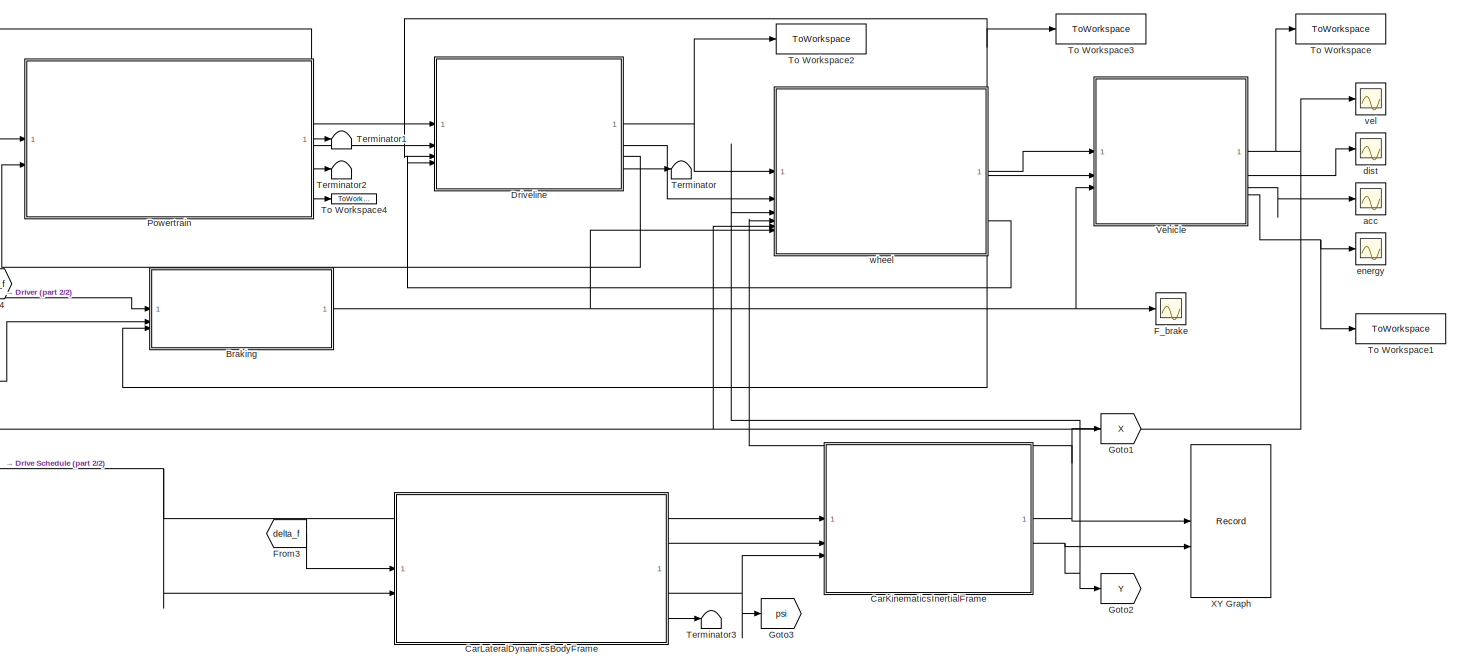
[diagram: root canvas - part 1/2, center side, full height]
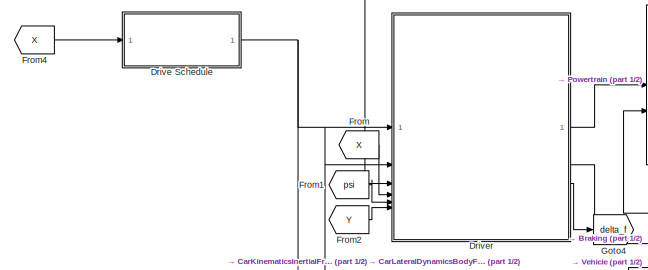
[diagram: root canvas - part 2/2, top left region]
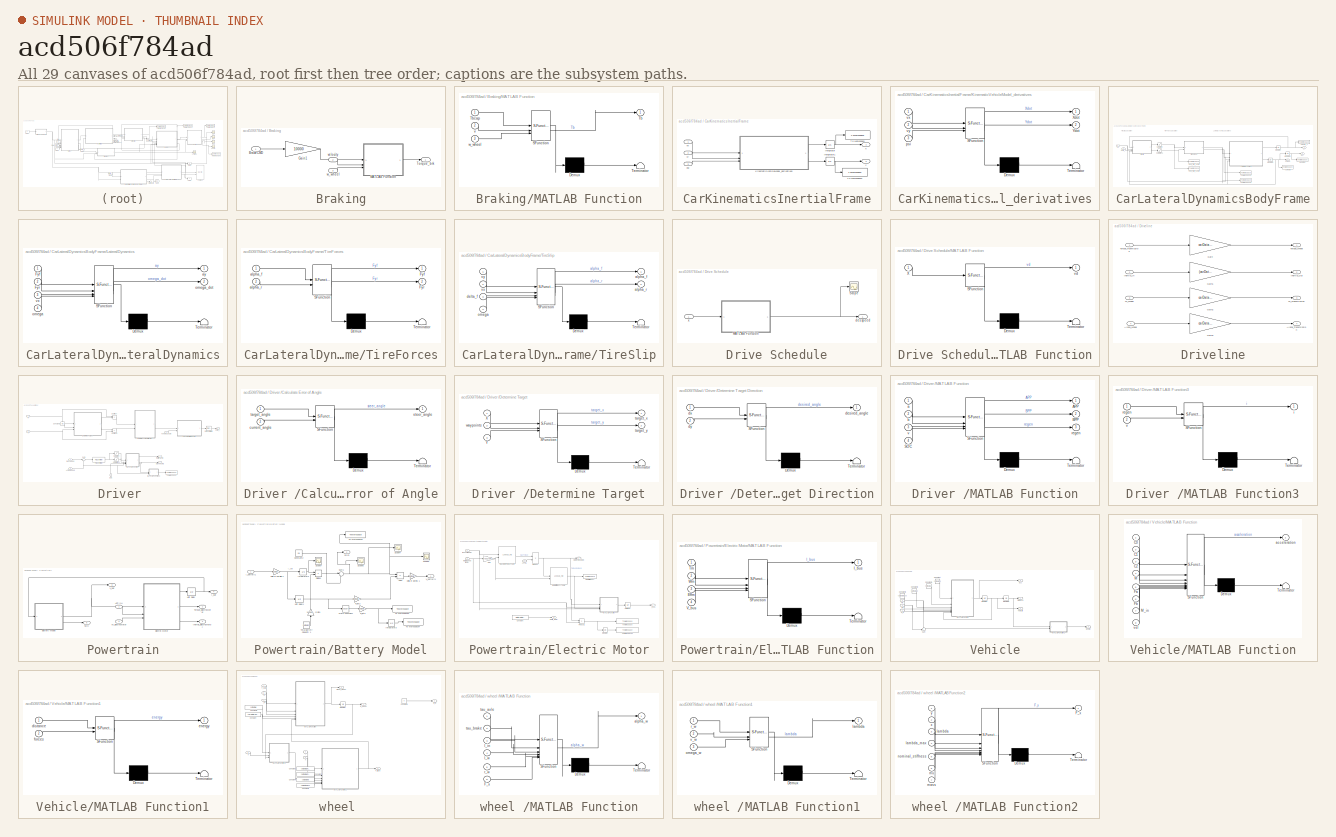
[diagram: thumbnail index - all 29 canvases of the model, root first then tree order]
MODEL slx_acd506f784ad
KIND model
CONFIG AbsTol = auto
CONFIG EnableMultiTasking = off
CONFIG FixedStep = 0.01
CONFIG MaxStep = auto
CONFIG MinStep = auto
CONFIG RelTol = 1e-3
CONFIG SampleTimeConstraint = Unconstrained
CONFIG SolverName = FixedStepAuto
CONFIG StartTime = 0.0
CONFIG StopTime = 240
BLOCK [SubSystem] Braking
BLOCK [Inport] Braking/BrakeCMD 
BLOCK [Gain] Braking/Gain1
  Gain = 10000
BLOCK [SubSystem] Braking/MATLAB Function
  ErrorFcn = Stateflow.Translate.translate
  PermitHierarchicalResolution = ExplicitOnly
  SFBlockType = MATLAB Function
  TreatAsAtomicUnit = on
BLOCK [Demux] Braking/MATLAB Function/ Demux 
  Outputs = 1
BLOCK [S-Function] Braking/MATLAB Function/ SFunction 
  EnableBusSupport = on
  FunctionName = sf_sfun
  PortCounts = [3 2]
  SFcnIsStateOwnerBlock = off
  SFunctionDeploymentMode = off
  Tag = Stateflow S-Function 7
BLOCK [Terminator] Braking/MATLAB Function/ Terminator 
BLOCK [Outport] Braking/MATLAB Function/Tb
BLOCK [Inport] Braking/MATLAB Function/Tbcap
BLOCK [Inport] Braking/MATLAB Function/v
  Port = 2
BLOCK [Inport] Braking/MATLAB Function/w_wheel
  Port = 3
BLOCK [Outport] Braking/Torque_brk 
  VectorParamsAs1DForOutWhenUnconnected = off
BLOCK [Inport] Braking/velocity 
  Port = 2
BLOCK [Inport] Braking/w_wheel
  Port = 3
BLOCK [SubSystem] CarKinematicsInertialFrame
BLOCK [Integrator] CarKinematicsInertialFrame/Integrator
  InitialCondition = carData.init.X0
BLOCK [Integrator] CarKinematicsInertialFrame/Integrator1
  InitialCondition = carData.init.Y0
BLOCK [SubSystem] CarKinematicsInertialFrame/KinematicVehicleModel_derivatives
  ErrorFcn = Stateflow.Translate.translate
  PermitHierarchicalResolution = ExplicitOnly
  SFBlockType = MATLAB Function
  TreatAsAtomicUnit = on
BLOCK [Demux] CarKinematicsInertialFrame/KinematicVehicleModel_derivatives/ Demux 
  Outputs = 1
BLOCK [S-Function] CarKinematicsInertialFrame/KinematicVehicleModel_derivatives/ SFunction 
  EnableBusSupport = on
  FunctionName = sf_sfun
  PortCounts = [3 3]
  SFcnIsStateOwnerBlock = off
  SFunctionDeploymentMode = off
  Tag = Stateflow S-Function 12
BLOCK [Terminator] CarKinematicsInertialFrame/KinematicVehicleModel_derivatives/ Terminator 
BLOCK [Outport] CarKinematicsInertialFrame/KinematicVehicleModel_derivatives/Xdot
BLOCK [Outport] CarKinematicsInertialFrame/KinematicVehicleModel_derivatives/Ydot
  Port = 2
BLOCK [Inport] CarKinematicsInertialFrame/KinematicVehicleModel_derivatives/psi
  Port = 3
BLOCK [Inport] CarKinematicsInertialFrame/KinematicVehicleModel_derivatives/vx
BLOCK [Inport] CarKinematicsInertialFrame/KinematicVehicleModel_derivatives/vy
  Port = 2
BLOCK [ToWorkspace] CarKinematicsInertialFrame/To Workspace
  FixptAsFi = on
  MaxDataPoints = inf
  SampleTime = -1
  SaveFormat = Timeseries
  VariableName = X
BLOCK [ToWorkspace] CarKinematicsInertialFrame/To Workspace1
  FixptAsFi = on
  MaxDataPoints = inf
  SampleTime = -1
  SaveFormat = Timeseries
  VariableName = Y
BLOCK [Outport] CarKinematicsInertialFrame/X
BLOCK [Outport] CarKinematicsInertialFrame/Y
  Port = 2
BLOCK [Inport] CarKinematicsInertialFrame/psi
  Port = 3
BLOCK [Inport] CarKinematicsInertialFrame/vx
BLOCK [Inport] CarKinematicsInertialFrame/vy
  Port = 2
BLOCK [SubSystem] CarLateralDynamicsBodyFrame
BLOCK [ToWorkspace] CarLateralDynamicsBodyFrame/Front_Slip_Angle
  FixptAsFi = on
  MaxDataPoints = inf
  SampleTime = -1
  SaveFormat = Timeseries
  VariableName = alpha_f
BLOCK [ToWorkspace] CarLateralDynamicsBodyFrame/Heading
  FixptAsFi = on
  MaxDataPoints = inf
  SampleTime = -1
  SaveFormat = Timeseries
  VariableName = psi
BLOCK [Integrator] CarLateralDynamicsBodyFrame/Integrator
  InitialCondition = carData.init.vy0
BLOCK [Integrator] CarLateralDynamicsBodyFrame/Integrator1
  InitialCondition = carData.init.omega0
BLOCK [Integrator] CarLateralDynamicsBodyFrame/Integrator2
  InitialCondition = carData.init.psi0
BLOCK [SubSystem] CarLateralDynamicsBodyFrame/LateralDynamics
  ErrorFcn = Stateflow.Translate.translate
  PermitHierarchicalResolution = ExplicitOnly
  SFBlockType = MATLAB Function
  TreatAsAtomicUnit = on
BLOCK [Demux] CarLateralDynamicsBodyFrame/LateralDynamics/ Demux 
  Outputs = 1
BLOCK [S-Function] CarLateralDynamicsBodyFrame/LateralDynamics/ SFunction 
  EnableBusSupport = on
  FunctionName = sf_sfun
  Parameters = obj
  PortCounts = [4 3]
  SFcnIsStateOwnerBlock = off
  SFunctionDeploymentMode = off
  Tag = Stateflow S-Function 9
BLOCK [Terminator] CarLateralDynamicsBodyFrame/LateralDynamics/ Terminator 
BLOCK [Inport] CarLateralDynamicsBodyFrame/LateralDynamics/Fyf
BLOCK [Inport] CarLateralDynamicsBodyFrame/LateralDynamics/Fyr
  Port = 2
BLOCK [Outport] CarLateralDynamicsBodyFrame/LateralDynamics/ay
BLOCK [Inport] CarLateralDynamicsBodyFrame/LateralDynamics/omega
  Port = 4
BLOCK [Outport] CarLateralDynamicsBodyFrame/LateralDynamics/omega_dot
  Port = 2
BLOCK [Inport] CarLateralDynamicsBodyFrame/LateralDynamics/vx
  Port = 3
BLOCK [ToWorkspace] CarLateralDynamicsBodyFrame/Rear_Slip_Angle
  FixptAsFi = on
  MaxDataPoints = inf
  SampleTime = -1
  SaveFormat = Timeseries
  VariableName = alpha_r
BLOCK [Saturate] CarLateralDynamicsBodyFrame/Saturation
  LowerLimit = -carData.maxAlpha
  UpperLimit = carData.maxAlpha
BLOCK [Saturate] CarLateralDynamicsBodyFrame/Saturation1
  LowerLimit = -carData.maxAlpha
  UpperLimit = carData.maxAlpha
BLOCK [SubSystem] CarLateralDynamicsBodyFrame/TireForces
  ErrorFcn = Stateflow.Translate.translate
  PermitHierarchicalResolution = ExplicitOnly
  SFBlockType = MATLAB Function
  TreatAsAtomicUnit = on
BLOCK [Demux] CarLateralDynamicsBodyFrame/TireForces/ Demux 
  Outputs = 1
BLOCK [S-Function] CarLateralDynamicsBodyFrame/TireForces/ SFunction 
  EnableBusSupport = on
  FunctionName = sf_sfun
  Parameters = obj
  PortCounts = [2 3]
  SFcnIsStateOwnerBlock = off
  SFunctionDeploymentMode = off
  Tag = Stateflow S-Function 10
BLOCK [Terminator] CarLateralDynamicsBodyFrame/TireForces/ Terminator 
BLOCK [Outport] CarLateralDynamicsBodyFrame/TireForces/Fyf
BLOCK [Outport] CarLateralDynamicsBodyFrame/TireForces/Fyr
  Port = 2
BLOCK [Inport] CarLateralDynamicsBodyFrame/TireForces/alpha_f
BLOCK [Inport] CarLateralDynamicsBodyFrame/TireForces/alpha_r
  Port = 2
BLOCK [SubSystem] CarLateralDynamicsBodyFrame/TireSlip
  ErrorFcn = Stateflow.Translate.translate
  PermitHierarchicalResolution = ExplicitOnly
  SFBlockType = MATLAB Function
  TreatAsAtomicUnit = on
BLOCK [Demux] CarLateralDynamicsBodyFrame/TireSlip/ Demux 
  Outputs = 1
BLOCK [S-Function] CarLateralDynamicsBodyFrame/TireSlip/ SFunction 
  EnableBusSupport = on
  FunctionName = sf_sfun
  Parameters = obj
  PortCounts = [4 3]
  SFcnIsStateOwnerBlock = off
  SFunctionDeploymentMode = off
  Tag = Stateflow S-Function 11
BLOCK [Terminator] CarLateralDynamicsBodyFrame/TireSlip/ Terminator 
BLOCK [Outport] CarLateralDynamicsBodyFrame/TireSlip/alpha_f
BLOCK [Outport] CarLateralDynamicsBodyFrame/TireSlip/alpha_r
  Port = 2
BLOCK [Inport] CarLateralDynamicsBodyFrame/TireSlip/delta_f
  Port = 3
BLOCK [Inport] CarLateralDynamicsBodyFrame/TireSlip/omega
  Port = 4
BLOCK [Inport] CarLateralDynamicsBodyFrame/TireSlip/vx
  Port = 2
BLOCK [Inport] CarLateralDynamicsBodyFrame/TireSlip/vy
BLOCK [ToWorkspace] CarLateralDynamicsBodyFrame/To Workspace5
  FixptAsFi = on
  MaxDataPoints = inf
  SampleTime = -1
  SaveFormat = Timeseries
  VariableName = Fyf
BLOCK [ToWorkspace] CarLateralDynamicsBodyFrame/To Workspace6
  FixptAsFi = on
  MaxDataPoints = inf
  SampleTime = -1
  SaveFormat = Timeseries
  VariableName = Fyr
BLOCK [ToWorkspace] CarLateralDynamicsBodyFrame/Velocity_Y
  FixptAsFi = on
  MaxDataPoints = inf
  SampleTime = -1
  SaveFormat = Timeseries
  VariableName = vy
BLOCK [ToWorkspace] CarLateralDynamicsBodyFrame/Yaw Rate
  FixptAsFi = on
  MaxDataPoints = inf
  SampleTime = -1
  SaveFormat = Timeseries
  VariableName = omega
BLOCK [Inport] CarLateralDynamicsBodyFrame/delta_f
BLOCK [Outport] CarLateralDynamicsBodyFrame/omega
  Port = 3
BLOCK [Outport] CarLateralDynamicsBodyFrame/psi
  Port = 2
BLOCK [Inport] CarLateralDynamicsBodyFrame/vx
  Port = 2
BLOCK [Outport] CarLateralDynamicsBodyFrame/vy
BLOCK [SubSystem] Drive Schedule
BLOCK [SubSystem] Drive Schedule/MATLAB Function
  ErrorFcn = Stateflow.Translate.translate
  PermitHierarchicalResolution = ExplicitOnly
  SFBlockType = MATLAB Function
  TreatAsAtomicUnit = on
BLOCK [Demux] Drive Schedule/MATLAB Function/ Demux 
  Outputs = 1
BLOCK [S-Function] Drive Schedule/MATLAB Function/ SFunction 
  EnableBusSupport = on
  FunctionName = sf_sfun
  PortCounts = [1 2]
  SFcnIsStateOwnerBlock = off
  SFunctionDeploymentMode = off
  Tag = Stateflow S-Function 15
BLOCK [Terminator] Drive Schedule/MATLAB Function/ Terminator 
BLOCK [Inport] Drive Schedule/MATLAB Function/X
BLOCK [Outport] Drive Schedule/MATLAB Function/vd
BLOCK [Scope] Drive Schedule/Scope
  Floating = off
  NumInputPorts = 1
  ScopeSpecificationString = Simulink.scopes.TimeScopeBlockCfg('CurrentConfiguration', extmgr.ConfigurationSet(extmgr.Configuration('Core','General UI',true),extmgr.Configuration('Core','Source UI',true),extmgr.Configuration('Sources','WiredSimulink',true,'DataLoggingVariableName','ScopeData4'),extmgr.Configuration('Visuals','Time Domain',true,'SerializedDisplays',{struct('MinYLimReal','-3.1684','MaxYLimReal','28.51556','YLab...<+1407ch>
BLOCK [Outport] Drive Schedule/des speed 
  VectorParamsAs1DForOutWhenUnconnected = off
BLOCK [Inport] Drive Schedule/x
BLOCK [SubSystem] Driveline
BLOCK [Outport] Driveline/Alpha_Transmission
  Port = 4
BLOCK [Inport] Driveline/Alpha_Wheel
  Port = 4
BLOCK [Gain] Driveline/Gain
  Gain = carData.FDG
BLOCK [Gain] Driveline/Gain1
  Gain = (carData.FDG)^2
BLOCK [Gain] Driveline/Gain2
  Gain = carData.FDG
BLOCK [Gain] Driveline/Gain3
  Gain = carData.FDG
BLOCK [Inport] Driveline/Inertia_In
  Port = 2
BLOCK [Outport] Driveline/Inertia_Out
  Port = 2
BLOCK [Inport] Driveline/Torque_Tranmission
BLOCK [Outport] Driveline/Torque_Wheel
BLOCK [Outport] Driveline/W_Transmission
  Port = 3
BLOCK [Inport] Driveline/W_Wheel
  Port = 3
BLOCK [SubSystem] Driver 
BLOCK [Inport] Driver /Actual Speed
  Port = 2
BLOCK [SubSystem] Driver /Calculate Error of Angle
  ErrorFcn = Stateflow.Translate.translate
  PermitHierarchicalResolution = ExplicitOnly
  SFBlockType = MATLAB Function
  TreatAsAtomicUnit = on
BLOCK [Demux] Driver /Calculate Error of Angle/ Demux 
  Outputs = 1
BLOCK [S-Function] Driver /Calculate Error of Angle/ SFunction 
  EnableBusSupport = on
  FunctionName = sf_sfun
  PortCounts = [2 2]
  SFcnIsStateOwnerBlock = off
  SFunctionDeploymentMode = off
  Tag = Stateflow S-Function 13
BLOCK [Terminator] Driver /Calculate Error of Angle/ Terminator 
BLOCK [Inport] Driver /Calculate Error of Angle/current_angle
  Port = 2
BLOCK [Outport] Driver /Calculate Error of Angle/steer_angle
BLOCK [Inport] Driver /Calculate Error of Angle/target_angle
BLOCK [Constant] Driver /Constant1
  Value = Wp
BLOCK [Inport] Driver /Des Speed 
BLOCK [SubSystem] Driver /Determine Target
  ErrorFcn = Stateflow.Translate.translate
  PermitHierarchicalResolution = ExplicitOnly
  SFBlockType = MATLAB Function
  TreatAsAtomicUnit = on
BLOCK [SubSystem] Driver /Determine Target Direction
  ErrorFcn = Stateflow.Translate.translate
  PermitHierarchicalResolution = ExplicitOnly
  SFBlockType = MATLAB Function
  TreatAsAtomicUnit = on
BLOCK [Demux] Driver /Determine Target Direction/ Demux 
  Outputs = 1
BLOCK [S-Function] Driver /Determine Target Direction/ SFunction 
  EnableBusSupport = on
  FunctionName = sf_sfun
  PortCounts = [2 2]
  SFcnIsStateOwnerBlock = off
  SFunctionDeploymentMode = off
  Tag = Stateflow S-Function 19
BLOCK [Terminator] Driver /Determine Target Direction/ Terminator 
BLOCK [Outport] Driver /Determine Target Direction/desired_angle
BLOCK [Inport] Driver /Determine Target Direction/dx
BLOCK [Inport] Driver /Determine Target Direction/dy
  Port = 2
BLOCK [Demux] Driver /Determine Target/ Demux 
  Outputs = 1
BLOCK [S-Function] Driver /Determine Target/ SFunction 
  EnableBusSupport = on
  FunctionName = sf_sfun
  PortCounts = [3 3]
  SFcnIsStateOwnerBlock = off
  SFunctionDeploymentMode = off
  Tag = Stateflow S-Function 14
BLOCK [Terminator] Driver /Determine Target/ Terminator 
BLOCK [Inport] Driver /Determine Target/X
BLOCK [Inport] Driver /Determine Target/Y
  Port = 3
BLOCK [Outport] Driver /Determine Target/target_x
BLOCK [Outport] Driver /Determine Target/target_y
  Port = 2
BLOCK [Inport] Driver /Determine Target/waypoints
  Port = 2
BLOCK [SubSystem] Driver /MATLAB Function
  ErrorFcn = Stateflow.Translate.translate
  PermitHierarchicalResolution = ExplicitOnly
  SFBlockType = MATLAB Function
  TreatAsAtomicUnit = on
BLOCK [Demux] Driver /MATLAB Function/ Demux 
  Outputs = 1
BLOCK [S-Function] Driver /MATLAB Function/ SFunction 
  EnableBusSupport = on
  FunctionName = sf_sfun
  PortCounts = [4 4]
  SFcnIsStateOwnerBlock = off
  SFunctionDeploymentMode = off
  Tag = Stateflow S-Function 1
BLOCK [Terminator] Driver /MATLAB Function/ Terminator 
BLOCK [Outport] Driver /MATLAB Function/APP
BLOCK [Outport] Driver /MATLAB Function/BPP
  Port = 2
BLOCK [Inport] Driver /MATLAB Function/SOC
  Port = 4
BLOCK [Inport] Driver /MATLAB Function/a
BLOCK [Inport] Driver /MATLAB Function/b
  Port = 2
BLOCK [Outport] Driver /MATLAB Function/regen
  Port = 3
BLOCK [Inport] Driver /MATLAB Function/v
  Port = 3
BLOCK [SubSystem] Driver /MATLAB Function3
  ErrorFcn = Stateflow.Translate.translate
  PermitHierarchicalResolution = ExplicitOnly
  SFBlockType = MATLAB Function
  TreatAsAtomicUnit = on
BLOCK [Demux] Driver /MATLAB Function3/ Demux 
  Outputs = 1
BLOCK [S-Function] Driver /MATLAB Function3/ SFunction 
  EnableBusSupport = on
  FunctionName = sf_sfun
  PortCounts = [2 2]
  SFcnIsStateOwnerBlock = off
  SFunctionDeploymentMode = off
  Tag = Stateflow S-Function 16
BLOCK [Terminator] Driver /MATLAB Function3/ Terminator 
BLOCK [Outport] Driver /MATLAB Function3/i
BLOCK [Inport] Driver /MATLAB Function3/regen
BLOCK [Inport] Driver /MATLAB Function3/v
  Port = 2
BLOCK [Reference] Driver /PID Controller  REF=slpidlib/PID Controller
  SourceBlock = slpidlib/PID Controller
  SourceType = PID 1dof
BLOCK [Reference] Driver /PID Controller2  REF=slpidlib/PID Controller
  LibrarySourceBlock = simulink/Continuous/PID Controller
  SourceBlock = slpidlib/PID Controller
  SourceType = PID 1dof
BLOCK [Inport] Driver /SOC
  NameLocation = right
  Port = 3
BLOCK [Saturate] Driver /Saturation
  LowerLimit = 0
  UpperLimit = 1
BLOCK [Saturate] Driver /Saturation1
  LowerLimit = -1
  UpperLimit = 0
BLOCK [Sum] Driver /Subtract
  IconShape = rectangular
  Inputs = -+
BLOCK [Sum] Driver /Subtract1
  IconShape = rectangular
  Inputs = +-
BLOCK [Sum] Driver /Sum
  Inputs = |+-
BLOCK [ToWorkspace] Driver /To Workspace
  FixptAsFi = on
  MaxDataPoints = inf
  SampleTime = -1
  SaveFormat = Timeseries
  VariableName = brake
BLOCK [Inport] Driver /X
  Port = 4
BLOCK [Inport] Driver /Y
  Port = 6
BLOCK [Outport] Driver /brake%cmd 
  Port = 2
BLOCK [Outport] Driver /delta_f
  Port = 3
BLOCK [Outport] Driver /throttle%cmd
BLOCK [Inport] Driver /vehicle_angle
  Port = 5
BLOCK [Scope] F_brake
  Floating = off
  NumInputPorts = 1
  ScopeSpecificationString = Simulink.scopes.TimeScopeBlockCfg('CurrentConfiguration', extmgr.ConfigurationSet(extmgr.Configuration('Core','General UI',true),extmgr.Configuration('Core','Source UI',true),extmgr.Configuration('Sources','WiredSimulink',true,'DataLoggingVariableName','ScopeData4'),extmgr.Configuration('Visuals','Time Domain',true,'SerializedDisplays',{struct('MinYLimReal','-183.82517','MaxYLimReal','1654.4265','...<+1469ch>
BLOCK [From] From
  GotoTag = X
BLOCK [From] From1
  GotoTag = psi
BLOCK [From] From2
  GotoTag = Y
BLOCK [From] From3
  GotoTag = delta_f
BLOCK [From] From4
  GotoTag = X
BLOCK [Goto] Goto1
  GotoTag = X
BLOCK [Goto] Goto2
  GotoTag = Y
BLOCK [Goto] Goto3
  GotoTag = psi
BLOCK [Goto] Goto4
  GotoTag = delta_f
BLOCK [SubSystem] Powertrain
BLOCK [Inport] Powertrain/APP (%)
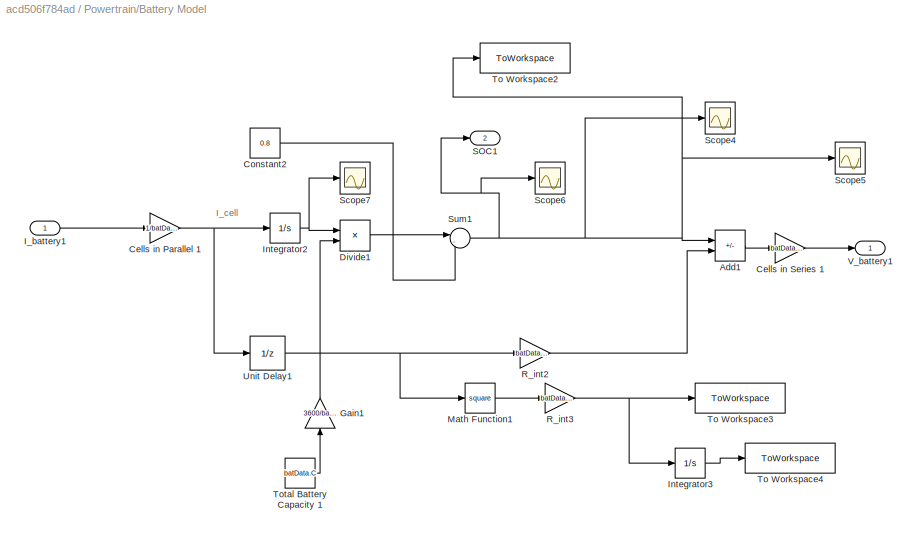
BLOCK [SubSystem] Powertrain/Battery Model
  TreatAsAtomicUnit = on
BLOCK [Sum] Powertrain/Battery Model/Add1
  IconShape = rectangular
  Inputs = +-
BLOCK [Gain] Powertrain/Battery Model/Cells in Parallel 1
  Gain = 1/batData.numParallel
BLOCK [Gain] Powertrain/Battery Model/Cells in Series 1
  Gain = batData.numSeries
BLOCK [Constant] Powertrain/Battery Model/Constant2
  Value = 0.8
BLOCK [Product] Powertrain/Battery Model/Divide1
  Inputs = */
BLOCK [Gain] Powertrain/Battery Model/Gain1
  Gain = 3600/batData.numParallel
  NameLocation = right
BLOCK [Inport] Powertrain/Battery Model/I_battery1
BLOCK [Integrator] Powertrain/Battery Model/Integrator2
BLOCK [Integrator] Powertrain/Battery Model/Integrator3
BLOCK [Math] Powertrain/Battery Model/Math Function1
  Operator = square
BLOCK [Gain] Powertrain/Battery Model/R_int2
  Gain = batData.Rint
BLOCK [Gain] Powertrain/Battery Model/R_int3
  Gain = batData.Rint
BLOCK [Outport] Powertrain/Battery Model/SOC1
  Port = 2
BLOCK [Scope] Powertrain/Battery Model/Scope4
  Floating = off
  NumInputPorts = 1
  ScopeSpecificationString = Simulink.scopes.TimeScopeBlockCfg('CurrentConfiguration', extmgr.ConfigurationSet(extmgr.Configuration('Core','General UI',true),extmgr.Configuration('Core','Source UI',true),extmgr.Configuration('Sources','WiredSimulink',true,'DataLoggingVariableName','ScopeData1'),extmgr.Configuration('Visuals','Time Domain',true,'SerializedDisplays',{struct('MinYLimReal','0.72781','MaxYLimReal','0.80802','YLabe...<+1483ch>
BLOCK [Scope] Powertrain/Battery Model/Scope5
  Floating = off
  NumInputPorts = 1
  ScopeSpecificationString = Simulink.scopes.TimeScopeBlockCfg('CurrentConfiguration', extmgr.ConfigurationSet(extmgr.Configuration('Core','General UI',true),extmgr.Configuration('Core','Source UI',true),extmgr.Configuration('Sources','WiredSimulink',true,'DataLoggingVariableName','ScopeData2'),extmgr.Configuration('Visuals','Time Domain',true,'SerializedDisplays',{struct('MinYLimReal','0.72781','MaxYLimReal','0.80802','YLabe...<+1486ch>
BLOCK [Scope] Powertrain/Battery Model/Scope6
  Floating = off
  NumInputPorts = 1
  ScopeSpecificationString = Simulink.scopes.TimeScopeBlockCfg('CurrentConfiguration', extmgr.ConfigurationSet(extmgr.Configuration('Core','General UI',true),extmgr.Configuration('Core','Source UI',true),extmgr.Configuration('Sources','WiredSimulink',true,'DataLoggingVariableName','ScopeData3'),extmgr.Configuration('Visuals','Time Domain',true,'SerializedDisplays',{struct('MinYLimReal','0.72781','MaxYLimReal','0.80802','YLabe...<+1450ch>
BLOCK [Scope] Powertrain/Battery Model/Scope7
  Floating = off
  NumInputPorts = 1
  ScopeSpecificationString = Simulink.scopes.TimeScopeBlockCfg('CurrentConfiguration', extmgr.ConfigurationSet(extmgr.Configuration('Core','General UI',true),extmgr.Configuration('Core','Source UI',true),extmgr.Configuration('Sources','WiredSimulink',true,'DataLoggingVariableName','ScopeData4'),extmgr.Configuration('Visuals','Time Domain',true,'SerializedDisplays',{struct('MinYLimReal','-1.00000','MaxYLimReal','1.00000','YLab...<+1370ch>
BLOCK [Sum] Powertrain/Battery Model/Sum1
  Inputs = |-+
  NameLocation = top
BLOCK [ToWorkspace] Powertrain/Battery Model/To Workspace2
  FixptAsFi = on
  MaxDataPoints = inf
  SampleTime = -1
  SaveFormat = Timeseries
  VariableName = OCV
BLOCK [ToWorkspace] Powertrain/Battery Model/To Workspace3
  FixptAsFi = on
  MaxDataPoints = inf
  SampleTime = -1
  SaveFormat = Timeseries
  VariableName = BatteryPowerLosses
BLOCK [ToWorkspace] Powertrain/Battery Model/To Workspace4
  FixptAsFi = on
  MaxDataPoints = inf
  SampleTime = -1
  SaveFormat = Timeseries
  VariableName = BatteryEnergyLosses
BLOCK [Constant] Powertrain/Battery Model/Total Battery Capacity 1
  Value = batData.C
BLOCK [UnitDelay] Powertrain/Battery Model/Unit Delay1
  HasFrameUpgradeWarning = on
  SampleTime = -1
BLOCK [Outport] Powertrain/Battery Model/V_battery1
BLOCK [SubSystem] Powertrain/Electric Motor
  TreatAsAtomicUnit = on
BLOCK [Inport] Powertrain/Electric Motor/APP (%)
  Port = 2
BLOCK [Inport] Powertrain/Electric Motor/Bus Voltage (V)
BLOCK [Constant] Powertrain/Electric Motor/Constant
  Value = motorData.Inertia
BLOCK [Gain] Powertrain/Electric Motor/Gain
  Gain = rps2rpm
BLOCK [Outport] Powertrain/Electric Motor/I_bus
BLOCK [Outport] Powertrain/Electric Motor/Inertia_Motor
  Port = 3
BLOCK [Integrator] Powertrain/Electric Motor/Integrator
BLOCK [SubSystem] Powertrain/Electric Motor/MATLAB Function
  ErrorFcn = Stateflow.Translate.translate
  PermitHierarchicalResolution = ExplicitOnly
  SFBlockType = MATLAB Function
  TreatAsAtomicUnit = on
BLOCK [Demux] Powertrain/Electric Motor/MATLAB Function/ Demux 
  Outputs = 1
BLOCK [S-Function] Powertrain/Electric Motor/MATLAB Function/ SFunction 
  EnableBusSupport = on
  FunctionName = sf_sfun
  PortCounts = [4 2]
  SFcnIsStateOwnerBlock = off
  SFunctionDeploymentMode = off
  Tag = Stateflow S-Function 4
BLOCK [Terminator] Powertrain/Electric Motor/MATLAB Function/ Terminator 
BLOCK [Inport] Powertrain/Electric Motor/MATLAB Function/Effm
  Port = 3
BLOCK [Outport] Powertrain/Electric Motor/MATLAB Function/I_bus
BLOCK [Inport] Powertrain/Electric Motor/MATLAB Function/Tm
BLOCK [Inport] Powertrain/Electric Motor/MATLAB Function/V_bus
  Port = 4
BLOCK [Inport] Powertrain/Electric Motor/MATLAB Function/Wm
  Port = 2
BLOCK [Lookup_n-D] Powertrain/Electric Motor/Max Motor Torque Table
  BreakpointsForDimension1 = motorData.vbus
  BreakpointsForDimension2 = motorData.rpm
  BreakpointsForDimension3 = [5, 7]
  InputPortMap = u0,u1
  InternalRulePriority = Speed
  RndMeth = Simplest
  Table = motorData.maxtorque
BLOCK [ToWorkspace] Powertrain/Electric Motor/Motor Efficiency
  FixptAsFi = on
  MaxDataPoints = inf
  SampleTime = -1
  SaveFormat = Timeseries
  VariableName = efficiency_motor1
BLOCK [Lookup_n-D] Powertrain/Electric Motor/Motor Efficiency Table
  BreakpointsForDimension1 = motorData.eta_torque
  BreakpointsForDimension2 = motorData.eta_speed
  BreakpointsForDimension3 = [5, 7]
  InputPortMap = u0,u1
  InternalRulePriority = Speed
  RndMeth = Simplest
  Table = motorData.eta_val
BLOCK [Inport] Powertrain/Electric Motor/Motor Speed (rad//s)
  Port = 3
BLOCK [Outport] Powertrain/Electric Motor/Motor Torque (Nm)
  Port = 2
BLOCK [Product] Powertrain/Electric Motor/Product
BLOCK [Product] Powertrain/Electric Motor/Product1
BLOCK [ToWorkspace] Powertrain/Electric Motor/To Workspace
  FixptAsFi = on
  MaxDataPoints = inf
  SampleTime = -1
  SaveFormat = Timeseries
  VariableName = MotorPower
BLOCK [ToWorkspace] Powertrain/Electric Motor/To Workspace1
  FixptAsFi = on
  MaxDataPoints = inf
  SampleTime = -1
  SaveFormat = Timeseries
  VariableName = MotorEnergy
BLOCK [UnitDelay] Powertrain/Electric Motor/Unit Delay
  HasFrameUpgradeWarning = on
  SampleTime = -1
BLOCK [Outport] Powertrain/I_bat
  Port = 4
BLOCK [Outport] Powertrain/Inertia_ElectricMotor
  Port = 2
BLOCK [Outport] Powertrain/SOC
  Port = 5
BLOCK [Outport] Powertrain/Torque_ElectricMotor
  NameLocation = top
BLOCK [UnitDelay] Powertrain/Unit Delay
  HasFrameUpgradeWarning = on
  SampleTime = -1
BLOCK [Outport] Powertrain/V_bat
  Port = 3
BLOCK [Inport] Powertrain/W_ElectricMotor
  Port = 2
BLOCK [Terminator] Terminator
BLOCK [Terminator] Terminator1
BLOCK [Terminator] Terminator2
BLOCK [Terminator] Terminator3
BLOCK [ToWorkspace] To Workspace
  FixptAsFi = on
  MaxDataPoints = inf
  SampleTime = -1
  SaveFormat = Timeseries
  VariableName = vel
BLOCK [ToWorkspace] To Workspace1
  FixptAsFi = on
  MaxDataPoints = inf
  SampleTime = -1
  SaveFormat = Timeseries
  VariableName = energy
BLOCK [ToWorkspace] To Workspace2
  FixptAsFi = on
  MaxDataPoints = inf
  SampleTime = -1
  SaveFormat = Timeseries
  VariableName = torque
BLOCK [ToWorkspace] To Workspace3
  FixptAsFi = on
  MaxDataPoints = inf
  SampleTime = -1
  SaveFormat = Timeseries
  VariableName = AngVel
BLOCK [ToWorkspace] To Workspace4
  FixptAsFi = on
  MaxDataPoints = inf
  SampleTime = -1
  SaveFormat = Timeseries
  VariableName = SOC
BLOCK [SubSystem] Vehicle
BLOCK [Constant] Vehicle/Constant
  Value = carData.C0
BLOCK [Constant] Vehicle/Constant1
  Value = carData.C1
BLOCK [Constant] Vehicle/Constant2
  Value = carData.C2
BLOCK [Constant] Vehicle/Constant3
  Value = carData.Mass
BLOCK [Outport] Vehicle/Distance 
  Port = 2
  VectorParamsAs1DForOutWhenUnconnected = off
BLOCK [Outport] Vehicle/Energy
  Port = 4
  VectorParamsAs1DForOutWhenUnconnected = off
BLOCK [Inport] Vehicle/Fb 
  Port = 3
BLOCK [Inport] Vehicle/Fw 
BLOCK [Integrator] Vehicle/Integrator
  LimitOutput = on
  LowerSaturationLimit = 0
BLOCK [Integrator] Vehicle/Integrator1
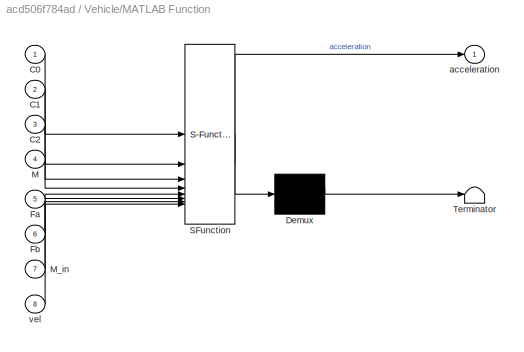
BLOCK [SubSystem] Vehicle/MATLAB Function
  ErrorFcn = Stateflow.Translate.translate
  PermitHierarchicalResolution = ExplicitOnly
  SFBlockType = MATLAB Function
  TreatAsAtomicUnit = on
BLOCK [Demux] Vehicle/MATLAB Function/ Demux 
  Outputs = 1
BLOCK [S-Function] Vehicle/MATLAB Function/ SFunction 
  EnableBusSupport = on
  FunctionName = sf_sfun
  PortCounts = [8 2]
  SFcnIsStateOwnerBlock = off
  SFunctionDeploymentMode = off
  Tag = Stateflow S-Function 2
BLOCK [Terminator] Vehicle/MATLAB Function/ Terminator 
BLOCK [Inport] Vehicle/MATLAB Function/C0
BLOCK [Inport] Vehicle/MATLAB Function/C1
  Port = 2
BLOCK [Inport] Vehicle/MATLAB Function/C2
  Port = 3
BLOCK [Inport] Vehicle/MATLAB Function/Fa
  Port = 5
BLOCK [Inport] Vehicle/MATLAB Function/Fb
  Port = 6
BLOCK [Inport] Vehicle/MATLAB Function/M
  Port = 4
BLOCK [Inport] Vehicle/MATLAB Function/M_in
  Port = 7
BLOCK [Outport] Vehicle/MATLAB Function/acceleration
  VectorParamsAs1DForOutWhenUnconnected = off
BLOCK [Inport] Vehicle/MATLAB Function/vel
  Port = 8
BLOCK [SubSystem] Vehicle/MATLAB Function1
  ErrorFcn = Stateflow.Translate.translate
  PermitHierarchicalResolution = ExplicitOnly
  SFBlockType = MATLAB Function
  TreatAsAtomicUnit = on
BLOCK [Demux] Vehicle/MATLAB Function1/ Demux 
  Outputs = 1
BLOCK [S-Function] Vehicle/MATLAB Function1/ SFunction 
  EnableBusSupport = on
  FunctionName = sf_sfun
  PortCounts = [2 2]
  SFcnIsStateOwnerBlock = off
  SFunctionDeploymentMode = off
  Tag = Stateflow S-Function 3
BLOCK [Terminator] Vehicle/MATLAB Function1/ Terminator 
BLOCK [Inport] Vehicle/MATLAB Function1/distance
BLOCK [Outport] Vehicle/MATLAB Function1/energy
BLOCK [Inport] Vehicle/MATLAB Function1/forces
  Port = 2
BLOCK [Inport] Vehicle/M_in 
  Port = 2
BLOCK [Sum] Vehicle/Sum
  Inputs = ++|
BLOCK [Outport] Vehicle/acc
  Port = 3
BLOCK [Outport] Vehicle/velocity 
  VectorParamsAs1DForOutWhenUnconnected = off
BLOCK [Record] XY Graph
  CompatibilityTag = XY
  FileSettingsInternal = {"entries":[{"content":{"excelSettings":{"content":{},"type":"Streamout.ExcelSettings"}},"type":"Streamout.FileSettingStorage","uuid":""}],"packageUris":["http:\/\/schema.mathworks.com\/mf0\/streamout_blocks\/R2020a"],"version":"1.0"}
  Layout = [1 1]
  SignalsInternal = {"entries":[{"content":{"signals":[{"content":{"blockPath":[],"dimensions":[1],"domain":"","lineColor":"#a2142f","plots":[ 1 ],"port":1,"sid":[""],"signalID":1,"signalName":"CarKinematicsInertialFrame:1"},"type":"RecordBlkView.Signal","uuid":""},{"content":{"blockPath":[],"dimensions":[1],"domain":"","lineColor":"#139fff","plots":[ 1 ],"port":2,"sid":[""],"signalID":2,"signalName":"CarKinematicsIn...<+202ch>
  VisualizationBindings = {"xyplotplugin":{"info":[{"series":[{"bindingParametersList":[{"parameter":"X-Axis","signalID":1,"signalName":"CarKinematicsInertialFrame:1"},{"parameter":"Y-Axis","signalID":2,"signalName":"CarKinematicsInertialFrame:2"}],"seriesID":0}],"subplotID":1}]}}
  st = -1
BLOCK [Scope] acc
  Floating = off
  NumInputPorts = 1
  ScopeSpecificationString = Simulink.scopes.TimeScopeBlockCfg('CurrentConfiguration', extmgr.ConfigurationSet(extmgr.Configuration('Core','General UI',true),extmgr.Configuration('Core','Source UI',true),extmgr.Configuration('Sources','WiredSimulink',true,'DataLoggingVariableName','ScopeData3'),extmgr.Configuration('Visuals','Time Domain',true,'SerializedDisplays',{struct('MinYLimReal','-12.30056','MaxYLimReal','74.14815','YL...<+1385ch>
BLOCK [Scope] dist
  Floating = off
  NumInputPorts = 1
  ScopeSpecificationString = Simulink.scopes.TimeScopeBlockCfg('CurrentConfiguration', extmgr.ConfigurationSet(extmgr.Configuration('Core','General UI',true),extmgr.Configuration('Core','Source UI',true),extmgr.Configuration('Sources','WiredSimulink',true,'DataLoggingVariableName','ScopeData2'),extmgr.Configuration('Visuals','Time Domain',true,'SerializedDisplays',{struct('MinYLimReal','-385.08236','MaxYLimReal','3465.74126',...<+1386ch>
BLOCK [Scope] energy
  Floating = off
  NumInputPorts = 1
  ScopeSpecificationString = Simulink.scopes.TimeScopeBlockCfg('CurrentConfiguration', extmgr.ConfigurationSet(extmgr.Configuration('Core','General UI',true),extmgr.Configuration('Core','Source UI',true),extmgr.Configuration('Sources','WiredSimulink',true,'DataLoggingVariableName','ScopeData1'),extmgr.Configuration('Visuals','Time Domain',true,'SerializedDisplays',{struct('MinYLimReal','-2146116.50369','MaxYLimReal','19315048...<+1587ch>
BLOCK [Scope] vel
  Floating = off
  NumInputPorts = 1
  ScopeSpecificationString = Simulink.scopes.TimeScopeBlockCfg('CurrentConfiguration', extmgr.ConfigurationSet(extmgr.Configuration('Core','General UI',true),extmgr.Configuration('Core','Source UI',true),extmgr.Configuration('Sources','WiredSimulink',true,'DataLoggingVariableName','ScopeData1'),extmgr.Configuration('Visuals','Time Domain',true,'SerializedDisplays',{struct('MinYLimReal','-3.04417','MaxYLimReal','27.39754','YLa...<+1407ch>
BLOCK [SubSystem] wheel 
BLOCK [Constant] wheel /Constant
  Value = carData.radius
BLOCK [Constant] wheel /Constant1
  Value = 0
BLOCK [Constant] wheel /Constant2
  Value = carData.lambda_max
BLOCK [Constant] wheel /Constant3
  Value = carData.lambda
BLOCK [Constant] wheel /Constant4
  Value = carData.mu
BLOCK [Constant] wheel /Constant5
  Value = carData.Mass
BLOCK [Constant] wheel /Constant6
  Value = carData.Iw
BLOCK [Outport] wheel /F_track
BLOCK [Inport] wheel /I_in
  Port = 2
BLOCK [Integrator] wheel /Integrator
BLOCK [SubSystem] wheel /MATLAB Function
  ErrorFcn = Stateflow.Translate.translate
  PermitHierarchicalResolution = ExplicitOnly
  SFBlockType = MATLAB Function
  TreatAsAtomicUnit = on
BLOCK [Demux] wheel /MATLAB Function/ Demux 
  Outputs = 1
BLOCK [S-Function] wheel /MATLAB Function/ SFunction 
  EnableBusSupport = on
  FunctionName = sf_sfun
  PortCounts = [6 2]
  SFcnIsStateOwnerBlock = off
  SFunctionDeploymentMode = off
  Tag = Stateflow S-Function 5
BLOCK [Terminator] wheel /MATLAB Function/ Terminator 
BLOCK [Inport] wheel /MATLAB Function/F_x
  Port = 6
BLOCK [Inport] wheel /MATLAB Function/I_in
  Port = 3
BLOCK [Inport] wheel /MATLAB Function/I_w
  Port = 4
BLOCK [Outport] wheel /MATLAB Function/alpha_w
BLOCK [Inport] wheel /MATLAB Function/r_w
  Port = 5
BLOCK [Inport] wheel /MATLAB Function/tau_axle
BLOCK [Inport] wheel /MATLAB Function/tau_brake
  Port = 2
BLOCK [SubSystem] wheel /MATLAB Function1
  ErrorFcn = Stateflow.Translate.translate
  PermitHierarchicalResolution = ExplicitOnly
  SFBlockType = MATLAB Function
  TreatAsAtomicUnit = on
BLOCK [Demux] wheel /MATLAB Function1/ Demux 
  Outputs = 1
BLOCK [S-Function] wheel /MATLAB Function1/ SFunction 
  EnableBusSupport = on
  FunctionName = sf_sfun
  PortCounts = [3 2]
  SFcnIsStateOwnerBlock = off
  SFunctionDeploymentMode = off
  Tag = Stateflow S-Function 6
BLOCK [Terminator] wheel /MATLAB Function1/ Terminator 
BLOCK [Outport] wheel /MATLAB Function1/lambda
BLOCK [Inport] wheel /MATLAB Function1/omega_w
  Port = 3
BLOCK [Inport] wheel /MATLAB Function1/r_w
BLOCK [Inport] wheel /MATLAB Function1/v_w
  Port = 2
BLOCK [SubSystem] wheel /MATLAB Function2
  ErrorFcn = Stateflow.Translate.translate
  PermitHierarchicalResolution = ExplicitOnly
  SFBlockType = MATLAB Function
  TreatAsAtomicUnit = on
BLOCK [Demux] wheel /MATLAB Function2/ Demux 
  Outputs = 1
BLOCK [S-Function] wheel /MATLAB Function2/ SFunction 
  EnableBusSupport = on
  FunctionName = sf_sfun
  PortCounts = [7 2]
  SFcnIsStateOwnerBlock = off
  SFunctionDeploymentMode = off
  Tag = Stateflow S-Function 8
BLOCK [Terminator] wheel /MATLAB Function2/ Terminator 
BLOCK [Outport] wheel /MATLAB Function2/F_x
BLOCK [Inport] wheel /MATLAB Function2/lambda
  Port = 3
BLOCK [Inport] wheel /MATLAB Function2/lambda_max
  Port = 4
BLOCK [Inport] wheel /MATLAB Function2/mass
  Port = 7
BLOCK [Inport] wheel /MATLAB Function2/mu
  Port = 6
BLOCK [Inport] wheel /MATLAB Function2/nominal_stiffness
  Port = 5
BLOCK [Inport] wheel /MATLAB Function2/x
  Port = 2
BLOCK [Inport] wheel /MATLAB Function2/y
BLOCK [Outport] wheel /M_in
  Port = 2
BLOCK [Inport] wheel /T_axle
BLOCK [Inport] wheel /Tb
  Port = 6
BLOCK [Inport] wheel /V
  Port = 5
BLOCK [Inport] wheel /X
  Port = 4
BLOCK [Inport] wheel /Y
  Port = 3
BLOCK [Outport] wheel /alpha_wheel
  Port = 4
BLOCK [Outport] wheel /w_wheel
  Port = 3
ANNOTATION CarLateralDynamicsBodyFrame: Lateral Dynamic Calculations
ANNOTATION CarLateralDynamicsBodyFrame: Tire Force Calculation
ANNOTATION CarLateralDynamicsBodyFrame: Tire Slip Calculation
ANNOTATION Powertrain/Battery Model: I_cell
LINE Braking/BrakeCMD :1 -> Braking/Gain1:1
LINE Braking/Gain1:1 -> Braking/MATLAB Function:1
LINE Braking/MATLAB Function:1 -> Braking/Torque_brk :1
LINE Braking/velocity :1 -> Braking/MATLAB Function:2
LINE Braking/w_wheel:1 -> Braking/MATLAB Function:3
NET Braking:1 -> F_brake:1, Vehicle:3, wheel :6
NET CarKinematicsInertialFrame/Integrator1:1 -> CarKinematicsInertialFrame/To Workspace1:1, CarKinematicsInertialFrame/Y:1
NET CarKinematicsInertialFrame/Integrator:1 -> CarKinematicsInertialFrame/To Workspace:1, CarKinematicsInertialFrame/X:1
LINE CarKinematicsInertialFrame/KinematicVehicleModel_derivatives:1 -> CarKinematicsInertialFrame/Integrator:1
LINE CarKinematicsInertialFrame/KinematicVehicleModel_derivatives:2 -> CarKinematicsInertialFrame/Integrator1:1
LINE CarKinematicsInertialFrame/psi:1 -> CarKinematicsInertialFrame/KinematicVehicleModel_derivatives:3
LINE CarKinematicsInertialFrame/vx:1 -> CarKinematicsInertialFrame/KinematicVehicleModel_derivatives:1
LINE CarKinematicsInertialFrame/vy:1 -> CarKinematicsInertialFrame/KinematicVehicleModel_derivatives:2
NET CarKinematicsInertialFrame:1 -> Goto1:1, XY Graph:1, wheel :4
NET CarKinematicsInertialFrame:2 -> Goto2:1, XY Graph:2, wheel :3
NET CarLateralDynamicsBodyFrame/Integrator1:1 -> CarLateralDynamicsBodyFrame/Integrator2:1, CarLateralDynamicsBodyFrame/LateralDynamics:4, CarLateralDynamicsBodyFrame/TireSlip:4, CarLateralDynamicsBodyFrame/Yaw Rate:1, CarLateralDynamicsBodyFrame/omega:1
NET CarLateralDynamicsBodyFrame/Integrator2:1 -> CarLateralDynamicsBodyFrame/Heading:1, CarLateralDynamicsBodyFrame/psi:1
NET CarLateralDynamicsBodyFrame/Integrator:1 -> CarLateralDynamicsBodyFrame/TireSlip:1, CarLateralDynamicsBodyFrame/Velocity_Y:1, CarLateralDynamicsBodyFrame/vy:1
LINE CarLateralDynamicsBodyFrame/LateralDynamics:1 -> CarLateralDynamicsBodyFrame/Integrator:1
LINE CarLateralDynamicsBodyFrame/LateralDynamics:2 -> CarLateralDynamicsBodyFrame/Integrator1:1
NET CarLateralDynamicsBodyFrame/Saturation1:1 -> CarLateralDynamicsBodyFrame/Rear_Slip_Angle:1, CarLateralDynamicsBodyFrame/TireForces:2
NET CarLateralDynamicsBodyFrame/Saturation:1 -> CarLateralDynamicsBodyFrame/Front_Slip_Angle:1, CarLateralDynamicsBodyFrame/TireForces:1
NET CarLateralDynamicsBodyFrame/TireForces:1 -> CarLateralDynamicsBodyFrame/LateralDynamics:1, CarLateralDynamicsBodyFrame/To Workspace5:1
NET CarLateralDynamicsBodyFrame/TireForces:2 -> CarLateralDynamicsBodyFrame/LateralDynamics:2, CarLateralDynamicsBodyFrame/To Workspace6:1
LINE CarLateralDynamicsBodyFrame/TireSlip:1 -> CarLateralDynamicsBodyFrame/Saturation:1
LINE CarLateralDynamicsBodyFrame/TireSlip:2 -> CarLateralDynamicsBodyFrame/Saturation1:1
LINE CarLateralDynamicsBodyFrame/delta_f:1 -> CarLateralDynamicsBodyFrame/TireSlip:3
NET CarLateralDynamicsBodyFrame/vx:1 -> CarLateralDynamicsBodyFrame/LateralDynamics:3, CarLateralDynamicsBodyFrame/TireSlip:2
LINE CarLateralDynamicsBodyFrame:1 -> CarKinematicsInertialFrame:2
NET CarLateralDynamicsBodyFrame:2 -> CarKinematicsInertialFrame:3, Goto3:1
LINE CarLateralDynamicsBodyFrame:3 -> Terminator3:1
NET Drive Schedule/MATLAB Function:1 -> Drive Schedule/Scope:1, Drive Schedule/des speed :1
LINE Drive Schedule/x:1 -> Drive Schedule/MATLAB Function:1
NET Drive Schedule:1 -> CarKinematicsInertialFrame:1, CarLateralDynamicsBodyFrame:2, Driver :1
LINE Driveline/Alpha_Wheel:1 -> Driveline/Gain3:1
LINE Driveline/Gain1:1 -> Driveline/Inertia_Out:1
LINE Driveline/Gain2:1 -> Driveline/W_Transmission:1
LINE Driveline/Gain3:1 -> Driveline/Alpha_Transmission:1
LINE Driveline/Gain:1 -> Driveline/Torque_Wheel:1
LINE Driveline/Inertia_In:1 -> Driveline/Gain1:1
LINE Driveline/Torque_Tranmission:1 -> Driveline/Gain:1
LINE Driveline/W_Wheel:1 -> Driveline/Gain2:1
NET Driveline:1 -> To Workspace2:1, wheel :1
LINE Driveline:2 -> wheel :2
LINE Driveline:3 -> Powertrain:2
LINE Driveline:4 -> Terminator:1
NET Driver /Actual Speed:1 -> Driver /MATLAB Function3:2, Driver /MATLAB Function:3, Driver /Sum:2
LINE Driver /Calculate Error of Angle:1 -> Driver /PID Controller2:1
LINE Driver /Constant1:1 -> Driver /Determine Target:2
LINE Driver /Des Speed :1 -> Driver /Sum:1
LINE Driver /Determine Target Direction:1 -> Driver /Calculate Error of Angle:1
LINE Driver /Determine Target:1 -> Driver /Subtract:2
LINE Driver /Determine Target:2 -> Driver /Subtract1:1
LINE Driver /MATLAB Function3:1 -> Driver /To Workspace:1
LINE Driver /MATLAB Function:1 -> Driver /throttle%cmd:1
LINE Driver /MATLAB Function:2 -> Driver /brake%cmd :1
LINE Driver /MATLAB Function:3 -> Driver /MATLAB Function3:1
LINE Driver /PID Controller2:1 -> Driver /delta_f:1
NET Driver /PID Controller:1 -> Driver /Saturation1:1, Driver /Saturation:1
LINE Driver /SOC:1 -> Driver /MATLAB Function:4
LINE Driver /Saturation1:1 -> Driver /MATLAB Function:2
LINE Driver /Saturation:1 -> Driver /MATLAB Function:1
LINE Driver /Subtract1:1 -> Driver /Determine Target Direction:2
LINE Driver /Subtract:1 -> Driver /Determine Target Direction:1
LINE Driver /Sum:1 -> Driver /PID Controller:1
NET Driver /X:1 -> Driver /Determine Target:1, Driver /Subtract:1
NET Driver /Y:1 -> Driver /Determine Target:3, Driver /Subtract1:2
LINE Driver /vehicle_angle:1 -> Driver /Calculate Error of Angle:2
LINE Driver :1 -> Powertrain:1
LINE Driver :2 -> Braking:1
LINE Driver :3 -> Goto4:1
LINE From1:1 -> Driver :5
LINE From2:1 -> Driver :6
LINE From3:1 -> CarLateralDynamicsBodyFrame:1
LINE From4:1 -> Drive Schedule:1
LINE From:1 -> Driver :4
LINE Powertrain/APP (%):1 -> Powertrain/Electric Motor:2
LINE Powertrain/Battery Model/Add1:1 -> Powertrain/Battery Model/Cells in Series 1:1
NET Powertrain/Battery Model/Cells in Parallel 1:1 -> Powertrain/Battery Model/Integrator2:1, Powertrain/Battery Model/Unit Delay1:1
LINE Powertrain/Battery Model/Cells in Series 1:1 -> Powertrain/Battery Model/V_battery1:1
LINE Powertrain/Battery Model/Constant2:1 -> Powertrain/Battery Model/Sum1:2
LINE Powertrain/Battery Model/Divide1:1 -> Powertrain/Battery Model/Sum1:1
LINE Powertrain/Battery Model/Gain1:1 -> Powertrain/Battery Model/Divide1:2
LINE Powertrain/Battery Model/I_battery1:1 -> Powertrain/Battery Model/Cells in Parallel 1:1
NET Powertrain/Battery Model/Integrator2:1 -> Powertrain/Battery Model/Divide1:1, Powertrain/Battery Model/Scope7:1
LINE Powertrain/Battery Model/Integrator3:1 -> Powertrain/Battery Model/To Workspace4:1
LINE Powertrain/Battery Model/Math Function1:1 -> Powertrain/Battery Model/R_int3:1
LINE Powertrain/Battery Model/R_int2:1 -> Powertrain/Battery Model/Add1:2
NET Powertrain/Battery Model/R_int3:1 -> Powertrain/Battery Model/Integrator3:1, Powertrain/Battery Model/To Workspace3:1
NET Powertrain/Battery Model/Sum1:1 -> Powertrain/Battery Model/Add1:1, Powertrain/Battery Model/SOC1:1, Powertrain/Battery Model/Scope4:1, Powertrain/Battery Model/Scope5:1, Powertrain/Battery Model/Scope6:1, Powertrain/Battery Model/To Workspace2:1
LINE Powertrain/Battery Model/Total Battery Capacity 1:1 -> Powertrain/Battery Model/Gain1:1
NET Powertrain/Battery Model/Unit Delay1:1 -> Powertrain/Battery Model/Math Function1:1, Powertrain/Battery Model/R_int2:1
NET Powertrain/Battery Model:1 -> Powertrain/Electric Motor:1, Powertrain/V_bat:1
LINE Powertrain/Battery Model:2 -> Powertrain/SOC:1
LINE Powertrain/Electric Motor/APP (%):1 -> Powertrain/Electric Motor/Product:2
NET Powertrain/Electric Motor/Bus Voltage (V):1 -> Powertrain/Electric Motor/MATLAB Function:4, Powertrain/Electric Motor/Max Motor Torque Table:1
LINE Powertrain/Electric Motor/Constant:1 -> Powertrain/Electric Motor/Inertia_Motor:1
NET Powertrain/Electric Motor/Gain:1 -> Powertrain/Electric Motor/Max Motor Torque Table:2, Powertrain/Electric Motor/Motor Efficiency Table:2
LINE Powertrain/Electric Motor/Integrator:1 -> Powertrain/Electric Motor/To Workspace1:1
LINE Powertrain/Electric Motor/MATLAB Function:1 -> Powertrain/Electric Motor/Unit Delay:1
LINE Powertrain/Electric Motor/Max Motor Torque Table:1 -> Powertrain/Electric Motor/Product:1
NET Powertrain/Electric Motor/Motor Efficiency Table:1 -> Powertrain/Electric Motor/MATLAB Function:3, Powertrain/Electric Motor/Motor Efficiency:1
NET Powertrain/Electric Motor/Motor Speed (rad//s):1 -> Powertrain/Electric Motor/Gain:1, Powertrain/Electric Motor/MATLAB Function:2, Powertrain/Electric Motor/Product1:2
NET Powertrain/Electric Motor/Product1:1 -> Powertrain/Electric Motor/Integrator:1, Powertrain/Electric Motor/To Workspace:1
NET Powertrain/Electric Motor/Product:1 -> Powertrain/Electric Motor/MATLAB Function:1, Powertrain/Electric Motor/Motor Efficiency Table:1, Powertrain/Electric Motor/Motor Torque (Nm):1, Powertrain/Electric Motor/Product1:1
LINE Powertrain/Electric Motor/Unit Delay:1 -> Powertrain/Electric Motor/I_bus:1
LINE Powertrain/Electric Motor:1 -> Powertrain/Unit Delay:1
LINE Powertrain/Electric Motor:2 -> Powertrain/Torque_ElectricMotor:1
LINE Powertrain/Electric Motor:3 -> Powertrain/Inertia_ElectricMotor:1
NET Powertrain/Unit Delay:1 -> Powertrain/Battery Model:1, Powertrain/I_bat:1
LINE Powertrain/W_ElectricMotor:1 -> Powertrain/Electric Motor:3
LINE Powertrain:1 -> Driveline:1
LINE Powertrain:2 -> Driveline:2
LINE Powertrain:3 -> Terminator1:1
LINE Powertrain:4 -> Terminator2:1
NET Powertrain:5 -> Driver :3, To Workspace4:1
LINE Vehicle/Constant1:1 -> Vehicle/MATLAB Function:2
LINE Vehicle/Constant2:1 -> Vehicle/MATLAB Function:3
LINE Vehicle/Constant3:1 -> Vehicle/MATLAB Function:4
LINE Vehicle/Constant:1 -> Vehicle/MATLAB Function:1
NET Vehicle/Fb :1 -> Vehicle/MATLAB Function:6, Vehicle/Sum:2
NET Vehicle/Fw :1 -> Vehicle/MATLAB Function:5, Vehicle/Sum:1
NET Vehicle/Integrator1:1 -> Vehicle/Distance :1, Vehicle/MATLAB Function1:1
NET Vehicle/Integrator:1 -> Vehicle/Integrator1:1, Vehicle/MATLAB Function:8, Vehicle/velocity :1
LINE Vehicle/MATLAB Function1:1 -> Vehicle/Energy:1
NET Vehicle/MATLAB Function:1 -> Vehicle/Integrator:1, Vehicle/acc:1
LINE Vehicle/M_in :1 -> Vehicle/MATLAB Function:7
LINE Vehicle/Sum:1 -> Vehicle/MATLAB Function1:2
NET Vehicle:1 -> Braking:2, Driver :2, To Workspace:1, vel:1, wheel :5
LINE Vehicle:2 -> dist:1
LINE Vehicle:3 -> acc:1
NET Vehicle:4 -> To Workspace1:1, energy:1
LINE wheel /Constant1:1 -> wheel /M_in:1
LINE wheel /Constant2:1 -> wheel /MATLAB Function2:4
LINE wheel /Constant3:1 -> wheel /MATLAB Function2:5
LINE wheel /Constant4:1 -> wheel /MATLAB Function2:6
LINE wheel /Constant5:1 -> wheel /MATLAB Function2:7
LINE wheel /Constant6:1 -> wheel /MATLAB Function:4
NET wheel /Constant:1 -> wheel /MATLAB Function1:1, wheel /MATLAB Function:5
LINE wheel /I_in:1 -> wheel /MATLAB Function:3
NET wheel /Integrator:1 -> wheel /MATLAB Function1:3, wheel /w_wheel:1
LINE wheel /MATLAB Function1:1 -> wheel /MATLAB Function2:3
NET wheel /MATLAB Function2:1 -> wheel /F_track:1, wheel /MATLAB Function:6
NET wheel /MATLAB Function:1 -> wheel /Integrator:1, wheel /alpha_wheel:1
LINE wheel /T_axle:1 -> wheel /MATLAB Function:1
LINE wheel /Tb:1 -> wheel /MATLAB Function:2
LINE wheel /V:1 -> wheel /MATLAB Function1:2
LINE wheel /X:1 -> wheel /MATLAB Function2:2
LINE wheel /Y:1 -> wheel /MATLAB Function2:1
LINE wheel :1 -> Vehicle:1
LINE wheel :2 -> Vehicle:2
NET wheel :3 -> Braking:3, Driveline:3, To Workspace3:1
LINE wheel :4 -> Driveline:4
note: NET lines group one-source signal fan-out (src -> all destinations, sorted); 1:1 wires keep LINE
CHART CarLateralDynamicsBodyFrame/LateralDynamics states=1 transitions=1
  STATE_LABEL 'eML_blk_kernel()'
  STATE_LABEL 'SCRIPT:\nfunction [ay, omega_dot] = fcn(Fyf, Fyr, vx, omega, obj)\n\nFy = Fyf + Fyr;\nay = Fy / obj.Mass - omega * vx;\n        \nM  = Fyf * obj.lf - Fyr * obj.lr;        \nomega_dot = M / obj.Inertia;        \n\nend'
CHART CarLateralDynamicsBodyFrame/TireForces states=1 transitions=1
  STATE_LABEL 'eML_blk_kernel()'
  STATE_LABEL 'SCRIPT:\nfunction [Fyf, Fyr] = fcn(alpha_f, alpha_r, obj)\n\nFyf = min(obj.Fyfmax,obj.Calpha_f * alpha_f);\nFyr = min(obj.Fyrmax, obj.Calpha_r * alpha_r);\nend'
CHART CarLateralDynamicsBodyFrame/TireSlip states=1 transitions=1
  STATE_LABEL 'eML_blk_kernel()'
  STATE_LABEL 'SCRIPT:\nfunction [alpha_f, alpha_r] = fcn(vy,  vx, delta_f, omega, obj)\n\n\nif abs(vx)> obj.vx_threshold1\n      alpha_f = delta_f - (vy + omega * obj.lf) / vx;\n      alpha_r = - (vy - omega * obj.lr) / vx;\nelse\n      alpha_f = 0;\n      alpha_r = 0;\nend\n\n\n\nend'
CHART CarKinematicsInertialFrame/KinematicVehicleModel_derivatives states=1 transitions=1
  STATE_LABEL 'eML_blk_kernel()'
  STATE_LABEL 'SCRIPT:\n    function [Xdot, Ydot] = fcn(vx, vy, psi)\n    temp = TF(psi) * [vx;vy]; \n    Xdot = temp(1);\n    Ydot = temp(2);\n  \nend\n\nfunction y = TF(psi)\n    y = [cos(psi), -sin(psi); sin(psi), cos(psi)];\nend'
CHART Driver
/Calculate Error of Angle states=1 transitions=1
  STATE_LABEL 'eML_blk_kernel()'
  STATE_LABEL 'SCRIPT:\nfunction steer_angle = diff(target_angle, current_angle)\n\n%steer_angle = angdiff(current_angle, target_angle);\nsteer_angle = atan2(sin(target_angle - current_angle), cos(target_angle - current_angle));'
CHART Driver
/MATLAB Function states=1 transitions=1
  STATE_LABEL 'eML_blk_kernel()'
  STATE_LABEL 'SCRIPT:\nfunction [APP,BPP,regen] = fcn(a,b,v, SOC)\nif v < (5*(1600/3600))\n    regen = 0;\n    friction = 1;\n    APP = a + b*regen;\n    BPP = b*friction;\nelseif v == (25*(1600/3600))\n    regen = 0.95;\n    friction = 0.05;\n    APP = a + b*regen;\n    BPP = b*friction;\nelseif v > (25*(1600/3600))\n    regen = 0.95;\n    friction = 0.05;\n    APP = a + b*regen;\n    BPP = b*friction;\nelse\n    regen = (0.95/...<+154ch>'
CHART Driver
/Determine Target states=1 transitions=1
  STATE_LABEL 'eML_blk_kernel()'
  STATE_LABEL 'SCRIPT:\nfunction [target_x, target_y] = Driver(X, waypoints, Y)\n\nwaypoints = waypoints(1:end-1,:);\n\n% Determine which waypoint is the closest\ndist_from_waypoints_sqr = (waypoints(:,1)-X).^2+(waypoints(:,2)-Y).^2;\ndist_from_waypoints = sqrt(dist_from_waypoints_sqr);\n\n[~, idx] = min(dist_from_waypoints);\n\n% Look ahead a few waypoints\ntarget_idx = idx + 1;\nif target_idx >= height(waypoints)\n   target...<+86ch>'
CHART Drive Schedule/MATLAB Function states=1 transitions=1
  STATE_LABEL 'eML_blk_kernel()'
  STATE_LABEL 'SCRIPT:\nfunction vd = fcn(X)\n\n%Vertical Speed\nif X > 0 && X < 900\n    vd = 67;\n%Speed in the Curve\nelse\n    vd = 20;\nend\n'
CHART Driver
/MATLAB Function3 states=1 transitions=1
  STATE_LABEL 'eML_blk_kernel()'
  STATE_LABEL 'SCRIPT:\nfunction i = fcn(regen, v)\n    speed = v * (3600 / 1600);\n    if speed < 5\n        regen_i = 0;\n        if abs(regen - regen_i) < 1e-6\n            i = 0;\n        else\n            i = 1;\n        end\n\n    elseif speed == 25\n        regen_i = 0.95;\n        if abs(regen - regen_i) < 1e-6\n            i = 0;\n        else\n            i = 1;\n        end\n\n    elseif speed > 25\n        regen_i = 0.9...<+268ch>'
CHART Driver
/Determine Target Direction states=1 transitions=1
  STATE_LABEL 'eML_blk_kernel()'
  STATE_LABEL 'SCRIPT:\nfunction desired_angle = fcn(dx,dy)\n\ndesired_angle = atan2(dy,dx);\n\n% Make desired_angle a positive value always\nif desired_angle < 0\n    desired_angle = desired_angle + 2 * pi;\nend'
CHART Vehicle/MATLAB Function states=1 transitions=1
  STATE_LABEL 'eML_blk_kernel()'
  STATE_LABEL 'SCRIPT:\nfunction acceleration   = vehicle(C0,C1,C2,M,Fa,Fb,M_in, vel)\n\nacceleration = (((Fa-Fb))-(C0+ C1*vel + C2*(vel)^2))/(M+M_in);\n\n% Fa: Force from wheel\n% Fb: Force from brake\n% -(C0+ C1*vel + C2*(vel)^2)): Force from drag (opposite direction of motion)'
CHART Vehicle/MATLAB Function1 states=1 transitions=1
  STATE_LABEL 'eML_blk_kernel()'
  STATE_LABEL 'SCRIPT:\nfunction energy = fcn(distance,forces)\n\nenergy = dot(forces,distance);\n'
CHART Powertrain/Electric Motor/MATLAB Function states=1 transitions=1
  STATE_LABEL 'eML_blk_kernel()'
  STATE_LABEL 'SCRIPT:\nfunction I_bus = fcn(Tm,Wm,Effm,V_bus)\nPm=Tm*Wm;\nsgnPm = Pm/(abs(Pm)+0.001);\nPe = Pm/(abs(Effm)^sgnPm);\nif V_bus > 1\n    I_bus = Pe/V_bus;\nelse\n    I_bus = 0;\nend \n\n\n%I_bus = ( (Pm) * (Effm)^(sgnPm) ) / V_bus;\n'
CHART wheel

/MATLAB Function states=1 transitions=1
  STATE_LABEL 'eML_blk_kernel()'
  STATE_LABEL 'SCRIPT:\nfunction alpha_w = wheel_acceleration(tau_axle, tau_brake, I_in, I_w, r_w, F_x)\n\nalpha_w = (tau_axle - tau_brake - F_x * r_w) / (I_in + I_w);\n'
CHART wheel

/MATLAB Function1 states=1 transitions=1
  STATE_LABEL 'eML_blk_kernel()'
  STATE_LABEL 'SCRIPT:\nfunction lambda = tire_slip_ratio(r_w, v_w, omega_w)\n\n % Calculate the effective wheel speed (linear speed equivalent)\n    wheel_speed = r_w * omega_w;\n\n    % Use the maximum of the two speeds as the denominator to avoid division by zero\n    denom = max(wheel_speed,v_w);\n\n    % If both speeds are zero, define the slip ratio as zero\n    if denom == 0\n        lambda = 0;\n    else\n        lam...<+47ch>'
CHART Braking/MATLAB Function states=1 transitions=1
  STATE_LABEL 'eML_blk_kernel()'
  STATE_LABEL 'SCRIPT:\nfunction Tb = fcn(Tbcap, v, w_wheel)\nTb = Tbcap * v/(abs(v)+0.001);\nend'
CHART wheel

/MATLAB Function2 states=1 transitions=1
  STATE_LABEL 'eML_blk_kernel()'
  STATE_LABEL 'SCRIPT:\nfunction F_x = tire_tractive_force(y, x, lambda, lambda_max, nominal_stiffness, mu, mass)\ng = 9.81;\n\nif x<0 || x>900 %both curved sections, regular normal force\n    N = mass * g/4;\n\nelseif x>=0 && x<=900 && y==0 %bottom straightaway, takes angle into consideration\n    N = mass * g*atan(10/900)/4;\n\nelseif x>=0 && x<=900 && y==400 %top straightaway (car is going down, negative slope)\n    N =...<+213ch>'
CHART  states=0 transitions=0
CHART  states=0 transitions=0
CHART  states=0 transitions=0
CHART  states=0 transitions=0
CHART  states=0 transitions=0
CHART  states=0 transitions=0
CHART  states=0 transitions=0
CHART  states=0 transitions=0
CHART  states=0 transitions=0
CHART  states=0 transitions=0
CHART  states=0 transitions=0
CHART  states=0 transitions=0
CHART  states=0 transitions=0
CHART  states=0 transitions=0
CHART  states=0 transitions=0
CHART  states=0 transitions=0
CHART  states=0 transitions=0
